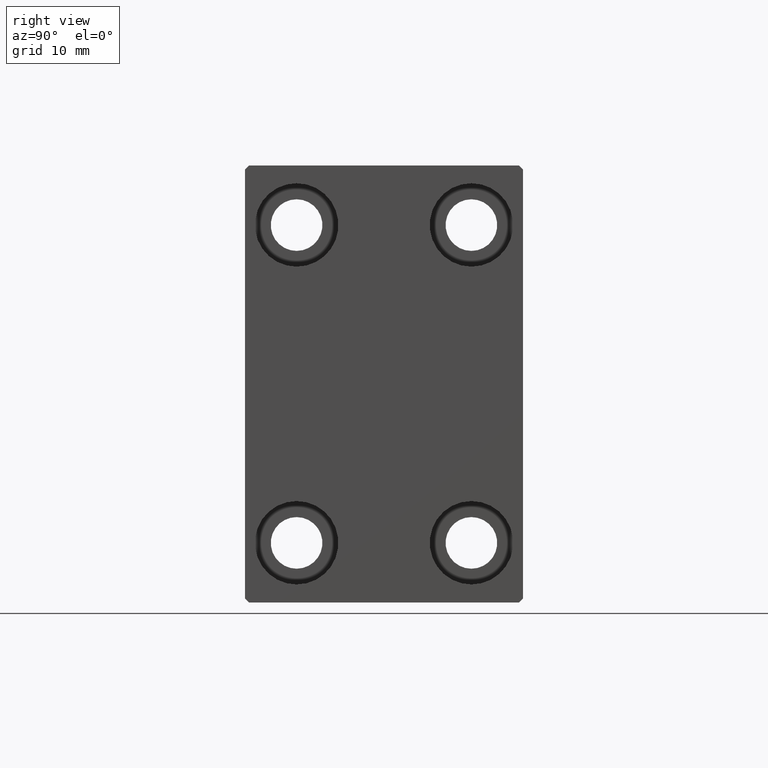
[diagram: clean part render]
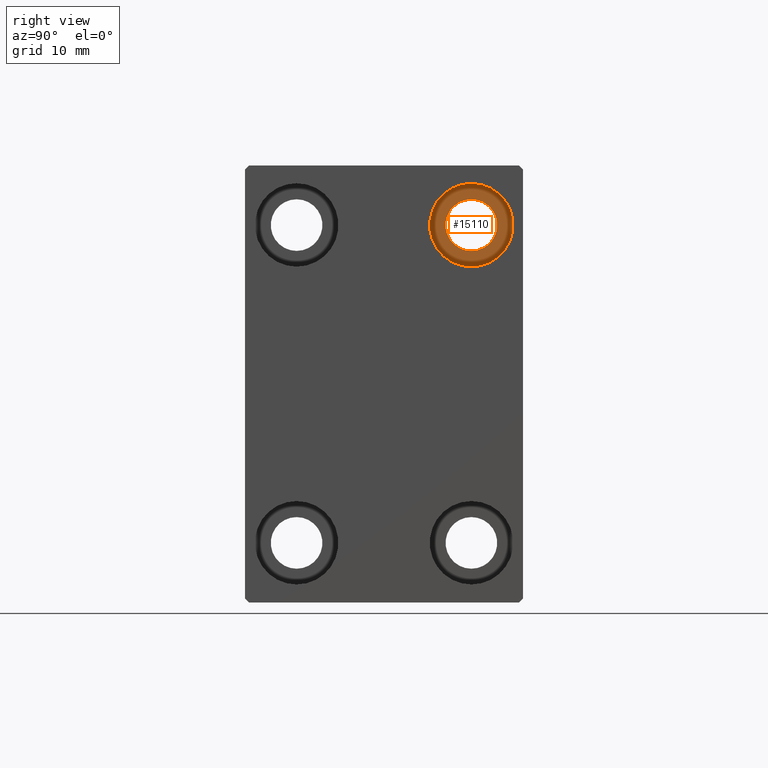
[diagram: same view with one face highlighted and labeled with its STEP entity id]
A machine part, right view. The second image highlights one B-rep face of the part: STEP entity #15110.
In plain terms, the highlighted planar face has unit normal (1, 0, 0).
Its self-contained STEP definition (entity closure, byte-faithful):
#2888 = EDGE_CURVE ( 'NONE', #36903, #3099, #27082, .T. ) ;
#3099 = VERTEX_POINT ( 'NONE', #18200 ) ;
#4177 = EDGE_LOOP ( 'NONE', ( #18422, #28091 ) ) ;
#5777 = ORIENTED_EDGE ( 'NONE', *, *, #11183, .F. ) ;
#8584 = CARTESIAN_POINT ( 'NONE',  ( 49.00000000000000000, 11.00000000000000355, 20.00000000000000000 ) ) ;
#8910 = CARTESIAN_POINT ( 'NONE',  ( 49.00000000000000000, 11.00000000000000355, 20.00000000000000000 ) ) ;
#9722 = EDGE_CURVE ( 'NONE', #3099, #36903, #10034, .T. ) ;
#10034 = CIRCLE ( 'NONE', #20739, 3.249999999999999556 ) ;
#10061 = CIRCLE ( 'NONE', #41364, 5.250000000000000888 ) ;
#10569 = EDGE_CURVE ( 'NONE', #11739, #17232, #38512, .T. ) ;
#11183 = EDGE_CURVE ( 'NONE', #17232, #11739, #10061, .T. ) ;
#11247 = DIRECTION ( 'NONE',  ( 0.000000000000000000, 0.000000000000000000, 1.000000000000000000 ) ) ;
#11739 = VERTEX_POINT ( 'NONE', #23163 ) ;
#14880 = DIRECTION ( 'NONE',  ( 1.000000000000000000, 0.000000000000000000, -0.000000000000000000 ) ) ;
#15110 = ADVANCED_FACE ( 'NONE', ( #35385, #25571 ), #18685, .T. ) ;
#15150 = DIRECTION ( 'NONE',  ( 0.000000000000000000, 0.000000000000000000, 1.000000000000000000 ) ) ;
#15649 = EDGE_LOOP ( 'NONE', ( #5777, #35411 ) ) ;
#16506 = CARTESIAN_POINT ( 'NONE',  ( 49.00000000000000000, 11.00000000000000355, 20.00000000000000000 ) ) ;
#17232 = VERTEX_POINT ( 'NONE', #22482 ) ;
#18200 = CARTESIAN_POINT ( 'NONE',  ( 49.00000000000000000, 11.00000000000000355, 16.75000000000000000 ) ) ;
#18422 = ORIENTED_EDGE ( 'NONE', *, *, #2888, .T. ) ;
#18640 = AXIS2_PLACEMENT_3D ( 'NONE', #8910, #26051, #15150 ) ;
#18685 = PLANE ( 'NONE',  #35817 ) ;
#20739 = AXIS2_PLACEMENT_3D ( 'NONE', #39605, #26233, #39810 ) ;
#22482 = CARTESIAN_POINT ( 'NONE',  ( 49.00000000000000000, 11.00000000000000355, 14.75000000000000000 ) ) ;
#23163 = CARTESIAN_POINT ( 'NONE',  ( 49.00000000000000000, 11.00000000000000355, 25.25000000000000000 ) ) ;
#25571 = FACE_BOUND ( 'NONE', #4177, .T. ) ;
#26051 = DIRECTION ( 'NONE',  ( -1.000000000000000000, -0.000000000000000000, -0.000000000000000000 ) ) ;
#26233 = DIRECTION ( 'NONE',  ( -1.000000000000000000, -0.000000000000000000, -0.000000000000000000 ) ) ;
#27082 = CIRCLE ( 'NONE', #32049, 3.249999999999999556 ) ;
#28091 = ORIENTED_EDGE ( 'NONE', *, *, #9722, .T. ) ;
#28185 = DIRECTION ( 'NONE',  ( -1.000000000000000000, -0.000000000000000000, -0.000000000000000000 ) ) ;
#29682 = CARTESIAN_POINT ( 'NONE',  ( 49.00000000000000000, 11.00000000000000355, 23.25000000000000000 ) ) ;
#32049 = AXIS2_PLACEMENT_3D ( 'NONE', #16506, #43649, #40304 ) ;
#35385 = FACE_OUTER_BOUND ( 'NONE', #15649, .T. ) ;
#35411 = ORIENTED_EDGE ( 'NONE', *, *, #10569, .F. ) ;
#35609 = CARTESIAN_POINT ( 'NONE',  ( 49.00000000000000000, 0.000000000000000000, 0.000000000000000000 ) ) ;
#35817 = AXIS2_PLACEMENT_3D ( 'NONE', #35609, #14880, #36259 ) ;
#36259 = DIRECTION ( 'NONE',  ( 0.000000000000000000, 0.000000000000000000, 1.000000000000000000 ) ) ;
#36903 = VERTEX_POINT ( 'NONE', #29682 ) ;
#38512 = CIRCLE ( 'NONE', #18640, 5.250000000000000888 ) ;
#39605 = CARTESIAN_POINT ( 'NONE',  ( 49.00000000000000000, 11.00000000000000355, 20.00000000000000000 ) ) ;
#39810 = DIRECTION ( 'NONE',  ( 0.000000000000000000, 0.000000000000000000, -1.000000000000000000 ) ) ;
#40304 = DIRECTION ( 'NONE',  ( 0.000000000000000000, 0.000000000000000000, -1.000000000000000000 ) ) ;
#41364 = AXIS2_PLACEMENT_3D ( 'NONE', #8584, #28185, #11247 ) ;
#43649 = DIRECTION ( 'NONE',  ( -1.000000000000000000, -0.000000000000000000, -0.000000000000000000 ) ) ;